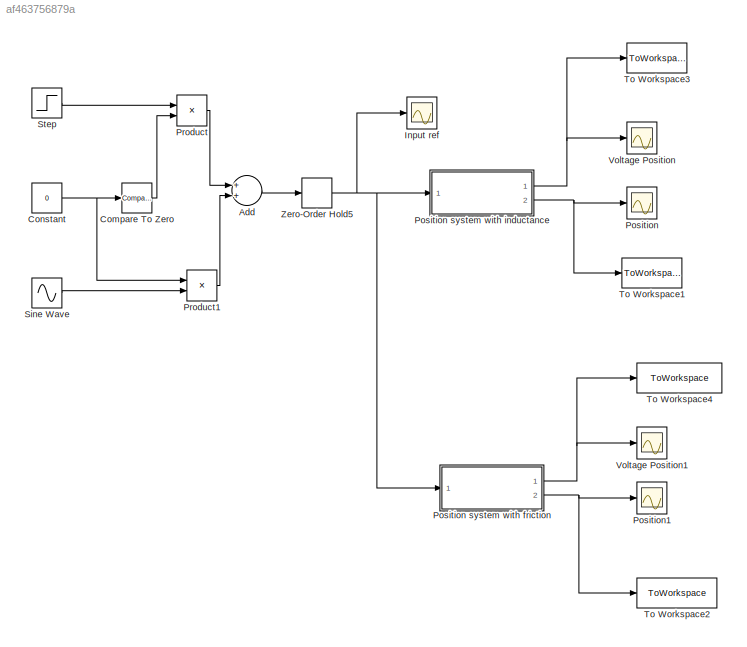
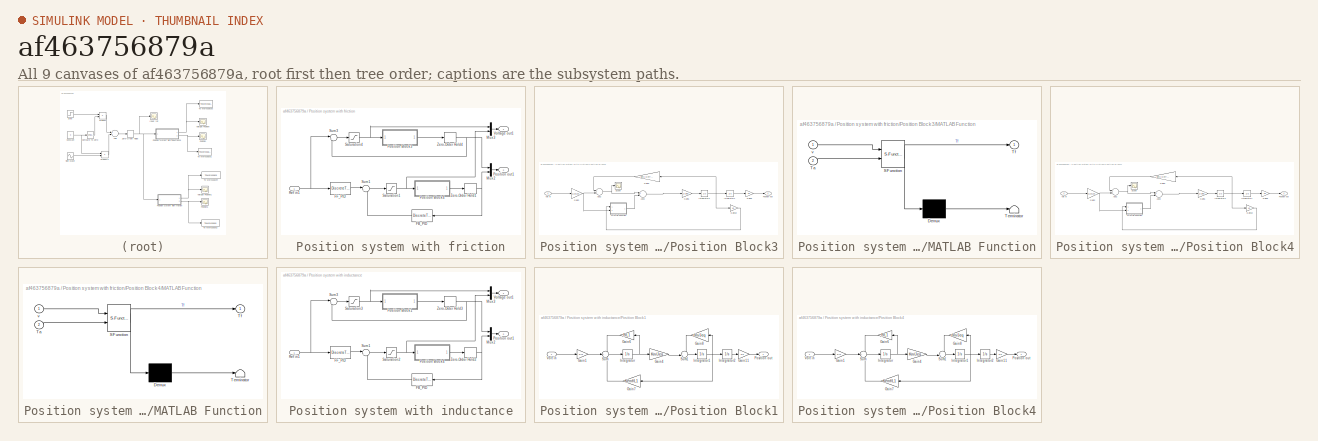
[diagram: thumbnail index - all 9 canvases of the model, root first then tree order]
MODEL slx_af463756879a
KIND model
CONFIG AbsTol = auto
CONFIG FixedStep = auto
CONFIG MaxStep = auto
CONFIG MinStep = auto
CONFIG RelTol = 1e-3
CONFIG SampleTimeConstraint = Unconstrained
CONFIG Solver = ode45
CONFIG SolverMode = SingleTasking
CONFIG SolverName = ode45
CONFIG StartTime = 0.0
CONFIG StopTime = time
BLOCK [Sum] Add
  InputSameDT = off
  OutDataTypeStr = Inherit: Inherit via internal rule
  Ports = [2, 1]
  SaturateOnIntegerOverflow = off
BLOCK [Reference] Compare To Zero  REF=simulink/Logic and Bit
Operations/Compare
To Zero
  OutDataTypeStr = boolean
  Ports = [1, 1]
  SourceBlock = simulink/Logic and Bit\nOperations/Compare\nTo Zero
  SourceType = Compare To Zero
  ZeroCross = on
  relop = <=
BLOCK [Constant] Constant
  Value = 0
BLOCK [Scope] Input ref
  Floating = off
  NumInputPorts = 1
  Ports = [1]
  ShowLegends = off
BLOCK [Scope] Position
  DataFormat = StructureWithTime
  Floating = off
  LimitDataPoints = off
  NumInputPorts = 1
  Ports = [1]
  ShowLegends = off
  YMax = 831.67539
  YMin = -1059.89325
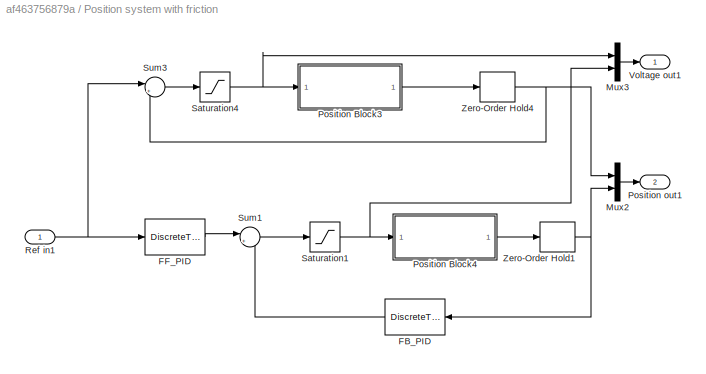
BLOCK [SubSystem] Position system with friction
  Ports = [1, 2]
  RequestExecContextInheritance = off
BLOCK [DiscreteTransferFcn] Position system with friction/FB_PID
  Denominator = FB_den{1,1}
  InputPortMap = u0
  Numerator = FB_num{1,1}
  Ports = [1, 1]
BLOCK [DiscreteTransferFcn] Position system with friction/FF_PID
  Denominator = FF_den{1,1}
  InputPortMap = u0
  Numerator = FF_num{1,1}
  Ports = [1, 1]
BLOCK [Mux] Position system with friction/Mux2
  DisplayOption = bar
  Inputs = 2
  Ports = [2, 1]
BLOCK [Mux] Position system with friction/Mux3
  DisplayOption = bar
  Inputs = 2
  Ports = [2, 1]
BLOCK [SubSystem] Position system with friction/Position Block3
  Ports = [1, 1]
  RequestExecContextInheritance = off
BLOCK [Sum] Position system with friction/Position Block3/Add2
  InputSameDT = off
  Inputs = -+
  OutDataTypeStr = Inherit: Inherit via internal rule
  Ports = [2, 1]
  SaturateOnIntegerOverflow = off
BLOCK [Sum] Position system with friction/Position Block3/Add3
  InputSameDT = off
  Inputs = +-
  OutDataTypeStr = Inherit: Inherit via internal rule
  Ports = [2, 1]
  SaturateOnIntegerOverflow = off
BLOCK [Gain] Position system with friction/Position Block3/Gain10
  Gain = 1/n
  OutDataTypeStr = Inherit: Inherit via internal rule
  ParamDataTypeStr = Inherit: Inherit via internal rule
  SaturateOnIntegerOverflow = off
BLOCK [Gain] Position system with friction/Position Block3/Gain2
  Gain = Km/R
  OutDataTypeStr = Inherit: Inherit via internal rule
  ParamDataTypeStr = Inherit: Inherit via internal rule
  SaturateOnIntegerOverflow = off
BLOCK [Gain] Position system with friction/Position Block3/Gain3
  Gain = dm+ Km*Kemf/R
  OutDataTypeStr = Inherit: Inherit via internal rule
  ParamDataTypeStr = Inherit: Inherit via internal rule
  SaturateOnIntegerOverflow = off
BLOCK [Gain] Position system with friction/Position Block3/Gain5
  Gain = 1/Jeq
  OutDataTypeStr = Inherit: Inherit via internal rule
  ParamDataTypeStr = Inherit: Inherit via internal rule
  SaturateOnIntegerOverflow = off
BLOCK [Gain] Position system with friction/Position Block3/Gain9
  Gain = 1/n
  OutDataTypeStr = Inherit: Inherit via internal rule
  ParamDataTypeStr = Inherit: Inherit via internal rule
  SaturateOnIntegerOverflow = off
BLOCK [Integrator] Position system with friction/Position Block3/Integrator1
  Ports = [1, 1]
BLOCK [Integrator] Position system with friction/Position Block3/Integrator3
  Ports = [1, 1]
BLOCK [SubSystem] Position system with friction/Position Block3/MATLAB Function
  ErrorFcn = Stateflow.Translate.translate
  PermitHierarchicalResolution = ExplicitOnly
  Ports = [2, 1]
  RequestExecContextInheritance = off
  SFBlockType = MATLAB Function
  TreatAsAtomicUnit = on
BLOCK [Demux] Position system with friction/Position Block3/MATLAB Function/ Demux 
  Outputs = 1
  Ports = [1, 1]
BLOCK [S-Function] Position system with friction/Position Block3/MATLAB Function/ SFunction 
  EnableBusSupport = on
  FunctionName = sf_sfun
  PortCounts = [2 2]
  Ports = [2, 2]
  Tag = Stateflow S-Function SimLab3_4 2
BLOCK [Terminator] Position system with friction/Position Block3/MATLAB Function/ Terminator 
BLOCK [Inport] Position system with friction/Position Block3/MATLAB Function/Ta
  IconDisplay = Port number
  Port = 2
BLOCK [Outport] Position system with friction/Position Block3/MATLAB Function/Tf
  IconDisplay = Port number
BLOCK [Inport] Position system with friction/Position Block3/MATLAB Function/v
  IconDisplay = Port number
BLOCK [Outport] Position system with friction/Position Block3/Position out
  IconDisplay = Port number
BLOCK [Scope] Position system with friction/Position Block3/Scope
  Floating = off
  NumInputPorts = 1
  Ports = [1]
  ShowLegends = off
BLOCK [Inport] Position system with friction/Position Block3/Volt in
  IconDisplay = Port number
BLOCK [SubSystem] Position system with friction/Position Block4
  Ports = [1, 1]
  RequestExecContextInheritance = off
BLOCK [Sum] Position system with friction/Position Block4/Add2
  InputSameDT = off
  Inputs = -+
  OutDataTypeStr = Inherit: Inherit via internal rule
  Ports = [2, 1]
  SaturateOnIntegerOverflow = off
BLOCK [Sum] Position system with friction/Position Block4/Add3
  InputSameDT = off
  Inputs = +-
  OutDataTypeStr = Inherit: Inherit via internal rule
  Ports = [2, 1]
  SaturateOnIntegerOverflow = off
BLOCK [Gain] Position system with friction/Position Block4/Gain10
  Gain = 1/n
  OutDataTypeStr = Inherit: Inherit via internal rule
  ParamDataTypeStr = Inherit: Inherit via internal rule
  SaturateOnIntegerOverflow = off
BLOCK [Gain] Position system with friction/Position Block4/Gain2
  Gain = Km/R
  OutDataTypeStr = Inherit: Inherit via internal rule
  ParamDataTypeStr = Inherit: Inherit via internal rule
  SaturateOnIntegerOverflow = off
BLOCK [Gain] Position system with friction/Position Block4/Gain3
  Gain = dm+ Km*Kemf/R
  OutDataTypeStr = Inherit: Inherit via internal rule
  ParamDataTypeStr = Inherit: Inherit via internal rule
  SaturateOnIntegerOverflow = off
BLOCK [Gain] Position system with friction/Position Block4/Gain5
  Gain = 1/Jeq
  OutDataTypeStr = Inherit: Inherit via internal rule
  ParamDataTypeStr = Inherit: Inherit via internal rule
  SaturateOnIntegerOverflow = off
BLOCK [Gain] Position system with friction/Position Block4/Gain9
  Gain = 1/n
  OutDataTypeStr = Inherit: Inherit via internal rule
  ParamDataTypeStr = Inherit: Inherit via internal rule
  SaturateOnIntegerOverflow = off
BLOCK [Integrator] Position system with friction/Position Block4/Integrator1
  Ports = [1, 1]
BLOCK [Integrator] Position system with friction/Position Block4/Integrator3
  Ports = [1, 1]
BLOCK [SubSystem] Position system with friction/Position Block4/MATLAB Function
  ErrorFcn = Stateflow.Translate.translate
  PermitHierarchicalResolution = ExplicitOnly
  Ports = [2, 1]
  RequestExecContextInheritance = off
  SFBlockType = MATLAB Function
  TreatAsAtomicUnit = on
BLOCK [Demux] Position system with friction/Position Block4/MATLAB Function/ Demux 
  Outputs = 1
  Ports = [1, 1]
BLOCK [S-Function] Position system with friction/Position Block4/MATLAB Function/ SFunction 
  EnableBusSupport = on
  FunctionName = sf_sfun
  PortCounts = [2 2]
  Ports = [2, 2]
  Tag = Stateflow S-Function SimLab3_4 3
BLOCK [Terminator] Position system with friction/Position Block4/MATLAB Function/ Terminator 
BLOCK [Inport] Position system with friction/Position Block4/MATLAB Function/Ta
  IconDisplay = Port number
  Port = 2
BLOCK [Outport] Position system with friction/Position Block4/MATLAB Function/Tf
  IconDisplay = Port number
BLOCK [Inport] Position system with friction/Position Block4/MATLAB Function/v
  IconDisplay = Port number
BLOCK [Outport] Position system with friction/Position Block4/Position out
  IconDisplay = Port number
BLOCK [Scope] Position system with friction/Position Block4/Scope
  Floating = off
  NumInputPorts = 1
  Ports = [1]
  ShowLegends = off
BLOCK [Inport] Position system with friction/Position Block4/Volt in
  IconDisplay = Port number
BLOCK [Outport] Position system with friction/Position out1
  IconDisplay = Port number
  Port = 2
BLOCK [Inport] Position system with friction/Ref in1
  IconDisplay = Port number
BLOCK [Saturate] Position system with friction/Saturation1
  InputPortMap = u0
  LowerLimit = -24
  Ports = [1, 1]
  UpperLimit = 24
BLOCK [Saturate] Position system with friction/Saturation4
  InputPortMap = u0
  LowerLimit = -24
  Ports = [1, 1]
  UpperLimit = 24
BLOCK [Sum] Position system with friction/Sum1
  IconShape = round
  InputSameDT = off
  Inputs = |+-
  OutDataTypeStr = Inherit: Inherit via internal rule
  Ports = [2, 1]
  SaturateOnIntegerOverflow = off
BLOCK [Sum] Position system with friction/Sum3
  IconShape = round
  InputSameDT = off
  Inputs = |+-
  OutDataTypeStr = Inherit: Inherit via internal rule
  Ports = [2, 1]
  SaturateOnIntegerOverflow = off
BLOCK [Outport] Position system with friction/Voltage out1
  IconDisplay = Port number
BLOCK [ZeroOrderHold] Position system with friction/Zero-Order Hold1
  SampleTime = Ts
BLOCK [ZeroOrderHold] Position system with friction/Zero-Order Hold4
  SampleTime = Ts
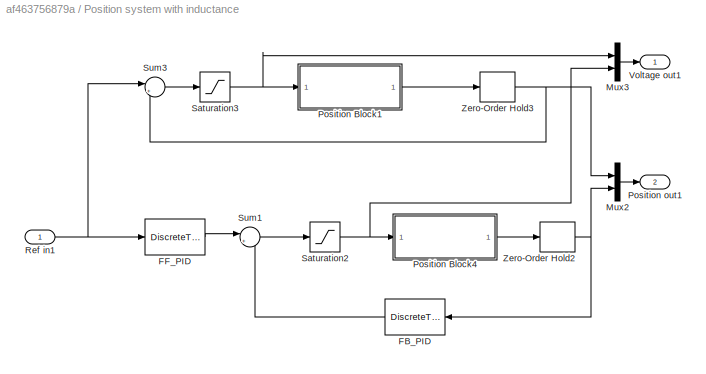
BLOCK [SubSystem] Position system with inductance
  Ports = [1, 2]
  RequestExecContextInheritance = off
BLOCK [DiscreteTransferFcn] Position system with inductance/FB_PID
  Denominator = FB_den{1,1}
  InputPortMap = u0
  Numerator = FB_num{1,1}
  Ports = [1, 1]
BLOCK [DiscreteTransferFcn] Position system with inductance/FF_PID
  Denominator = FF_den{1,1}
  InputPortMap = u0
  Numerator = FF_num{1,1}
  Ports = [1, 1]
BLOCK [Mux] Position system with inductance/Mux2
  DisplayOption = bar
  Inputs = 2
  Ports = [2, 1]
BLOCK [Mux] Position system with inductance/Mux3
  DisplayOption = bar
  Inputs = 2
  Ports = [2, 1]
BLOCK [SubSystem] Position system with inductance/Position Block1
  Ports = [1, 1]
  RequestExecContextInheritance = off
BLOCK [Gain] Position system with inductance/Position Block1/Gain1
  Gain = 1/L1
  OutDataTypeStr = Inherit: Inherit via internal rule
  ParamDataTypeStr = Inherit: Inherit via internal rule
  SaturateOnIntegerOverflow = off
BLOCK [Gain] Position system with inductance/Position Block1/Gain11
  Gain = 1/n
  OutDataTypeStr = Inherit: Inherit via internal rule
  ParamDataTypeStr = Inherit: Inherit via internal rule
  SaturateOnIntegerOverflow = off
BLOCK [Gain] Position system with inductance/Position Block1/Gain4
  Gain = Km/Jeq
  OutDataTypeStr = Inherit: Inherit via internal rule
  ParamDataTypeStr = Inherit: Inherit via internal rule
  SaturateOnIntegerOverflow = off
BLOCK [Gain] Position system with inductance/Position Block1/Gain6
  Gain = R/L1
  OutDataTypeStr = Inherit: Inherit via internal rule
  ParamDataTypeStr = Inherit: Inherit via internal rule
  SaturateOnIntegerOverflow = off
BLOCK [Gain] Position system with inductance/Position Block1/Gain7
  Gain = Kemf/L1
  OutDataTypeStr = Inherit: Inherit via internal rule
  ParamDataTypeStr = Inherit: Inherit via internal rule
  SaturateOnIntegerOverflow = off
BLOCK [Gain] Position system with inductance/Position Block1/Gain8
  Gain = dm/Jeq
  OutDataTypeStr = Inherit: Inherit via internal rule
  ParamDataTypeStr = Inherit: Inherit via internal rule
  SaturateOnIntegerOverflow = off
BLOCK [Integrator] Position system with inductance/Position Block1/Integrator
  Ports = [1, 1]
BLOCK [Integrator] Position system with inductance/Position Block1/Integrator1
  Ports = [1, 1]
BLOCK [Integrator] Position system with inductance/Position Block1/Integrator2
  Ports = [1, 1]
BLOCK [Outport] Position system with inductance/Position Block1/Position out
  IconDisplay = Port number
BLOCK [Sum] Position system with inductance/Position Block1/Sum
  IconShape = round
  InputSameDT = off
  Inputs = -+-
  OutDataTypeStr = Inherit: Inherit via internal rule
  Ports = [3, 1]
  SaturateOnIntegerOverflow = off
BLOCK [Sum] Position system with inductance/Position Block1/Sum1
  IconShape = round
  InputSameDT = off
  Inputs = -+|
  OutDataTypeStr = Inherit: Inherit via internal rule
  Ports = [2, 1]
  SaturateOnIntegerOverflow = off
BLOCK [Inport] Position system with inductance/Position Block1/Volt in
  IconDisplay = Port number
BLOCK [SubSystem] Position system with inductance/Position Block4
  Ports = [1, 1]
  RequestExecContextInheritance = off
BLOCK [Gain] Position system with inductance/Position Block4/Gain1
  Gain = 1/L1
  OutDataTypeStr = Inherit: Inherit via internal rule
  ParamDataTypeStr = Inherit: Inherit via internal rule
  SaturateOnIntegerOverflow = off
BLOCK [Gain] Position system with inductance/Position Block4/Gain11
  Gain = 1/n
  OutDataTypeStr = Inherit: Inherit via internal rule
  ParamDataTypeStr = Inherit: Inherit via internal rule
  SaturateOnIntegerOverflow = off
BLOCK [Gain] Position system with inductance/Position Block4/Gain4
  Gain = Km/Jeq
  OutDataTypeStr = Inherit: Inherit via internal rule
  ParamDataTypeStr = Inherit: Inherit via internal rule
  SaturateOnIntegerOverflow = off
BLOCK [Gain] Position system with inductance/Position Block4/Gain6
  Gain = R/L1
  OutDataTypeStr = Inherit: Inherit via internal rule
  ParamDataTypeStr = Inherit: Inherit via internal rule
  SaturateOnIntegerOverflow = off
BLOCK [Gain] Position system with inductance/Position Block4/Gain7
  Gain = Kemf/L1
  OutDataTypeStr = Inherit: Inherit via internal rule
  ParamDataTypeStr = Inherit: Inherit via internal rule
  SaturateOnIntegerOverflow = off
BLOCK [Gain] Position system with inductance/Position Block4/Gain8
  Gain = dm/Jeq
  OutDataTypeStr = Inherit: Inherit via internal rule
  ParamDataTypeStr = Inherit: Inherit via internal rule
  SaturateOnIntegerOverflow = off
BLOCK [Integrator] Position system with inductance/Position Block4/Integrator
  Ports = [1, 1]
BLOCK [Integrator] Position system with inductance/Position Block4/Integrator1
  Ports = [1, 1]
BLOCK [Integrator] Position system with inductance/Position Block4/Integrator2
  Ports = [1, 1]
BLOCK [Outport] Position system with inductance/Position Block4/Position out
  IconDisplay = Port number
BLOCK [Sum] Position system with inductance/Position Block4/Sum
  IconShape = round
  InputSameDT = off
  Inputs = -+-
  OutDataTypeStr = Inherit: Inherit via internal rule
  Ports = [3, 1]
  SaturateOnIntegerOverflow = off
BLOCK [Sum] Position system with inductance/Position Block4/Sum1
  IconShape = round
  InputSameDT = off
  Inputs = -+|
  OutDataTypeStr = Inherit: Inherit via internal rule
  Ports = [2, 1]
  SaturateOnIntegerOverflow = off
BLOCK [Inport] Position system with inductance/Position Block4/Volt in
  IconDisplay = Port number
BLOCK [Outport] Position system with inductance/Position out1
  IconDisplay = Port number
  Port = 2
BLOCK [Inport] Position system with inductance/Ref in1
  IconDisplay = Port number
BLOCK [Saturate] Position system with inductance/Saturation2
  InputPortMap = u0
  LowerLimit = -24
  Ports = [1, 1]
  UpperLimit = 24
BLOCK [Saturate] Position system with inductance/Saturation3
  InputPortMap = u0
  LowerLimit = -24
  Ports = [1, 1]
  UpperLimit = 24
BLOCK [Sum] Position system with inductance/Sum1
  IconShape = round
  InputSameDT = off
  Inputs = |+-
  OutDataTypeStr = Inherit: Inherit via internal rule
  Ports = [2, 1]
  SaturateOnIntegerOverflow = off
BLOCK [Sum] Position system with inductance/Sum3
  IconShape = round
  InputSameDT = off
  Inputs = |+-
  OutDataTypeStr = Inherit: Inherit via internal rule
  Ports = [2, 1]
  SaturateOnIntegerOverflow = off
BLOCK [Outport] Position system with inductance/Voltage out1
  IconDisplay = Port number
BLOCK [ZeroOrderHold] Position system with inductance/Zero-Order Hold2
  SampleTime = Ts
BLOCK [ZeroOrderHold] Position system with inductance/Zero-Order Hold3
  SampleTime = Ts
BLOCK [Scope] Position1
  DataFormat = StructureWithTime
  Floating = off
  LimitDataPoints = off
  NumInputPorts = 1
  Ports = [1]
  SaveName = ScopeData1
  ShowLegends = off
  YMax = 34.33503
  YMin = -3.815
BLOCK [Product] Product
  InputSameDT = off
  OutDataTypeStr = Inherit: Inherit via internal rule
  Ports = [2, 1]
  RndMeth = Floor
  SaturateOnIntegerOverflow = off
BLOCK [Product] Product1
  InputSameDT = off
  OutDataTypeStr = Inherit: Inherit via internal rule
  Ports = [2, 1]
  RndMeth = Floor
  SaturateOnIntegerOverflow = off
BLOCK [Sin] Sine Wave
  Amplitude = Amplitude
  Frequency = Freq
  Ports = [0, 1]
  SampleTime = 0
BLOCK [Step] Step
  After = Amplitude
  SampleTime = 0
  Time = 0
BLOCK [ToWorkspace] To Workspace1
  FixptAsFi = on
  MaxDataPoints = inf
  Ports = [1]
  SampleTime = Ts
  Save2DSignal = 3-D array (concatenate along third dimension)
  SaveFormat = Structure With Time
  VariableName = PositionOutL
BLOCK [ToWorkspace] To Workspace2
  FixptAsFi = on
  MaxDataPoints = inf
  Ports = [1]
  SampleTime = Ts
  Save2DSignal = 3-D array (concatenate along third dimension)
  SaveFormat = Structure With Time
  VariableName = PositionOutFriction
BLOCK [ToWorkspace] To Workspace3
  FixptAsFi = on
  MaxDataPoints = inf
  Ports = [1]
  SampleTime = Ts
  Save2DSignal = 3-D array (concatenate along third dimension)
  SaveFormat = Structure With Time
  VariableName = VoltageOutL
BLOCK [ToWorkspace] To Workspace4
  FixptAsFi = on
  MaxDataPoints = inf
  Ports = [1]
  SampleTime = Ts
  Save2DSignal = 3-D array (concatenate along third dimension)
  SaveFormat = Structure With Time
  VariableName = VoltageOutFriction
BLOCK [Scope] Voltage Position
  Floating = off
  NumInputPorts = 1
  Ports = [1]
  ShowLegends = off
BLOCK [Scope] Voltage Position1
  Floating = off
  NumInputPorts = 1
  Ports = [1]
  SaveName = ScopeData2
  ShowLegends = off
  YMax = 30.00000
  YMin = -30.00000
BLOCK [ZeroOrderHold] Zero-Order Hold5
  SampleTime = Ts
LINE Add:1 -> Zero-Order Hold5:1
LINE Compare To Zero:1 -> Product:2
NET Constant:1 -> Compare To Zero:1, Product1:1
LINE Position system with friction/FB_PID:1 -> Position system with friction/Sum1:2
LINE Position system with friction/FF_PID:1 -> Position system with friction/Sum1:1
LINE Position system with friction/Mux2:1 -> Position system with friction/Position out1:1
LINE Position system with friction/Mux3:1 -> Position system with friction/Voltage out1:1
NET Position system with friction/Position Block3/Add2:1 -> Position system with friction/Position Block3/Add3:1, Position system with friction/Position Block3/Scope:1
LINE Position system with friction/Position Block3/Add3:1 -> Position system with friction/Position Block3/Gain5:1
LINE Position system with friction/Position Block3/Gain10:1 -> Position system with friction/Position Block3/MATLAB Function:1
NET Position system with friction/Position Block3/Gain2:1 -> Position system with friction/Position Block3/Add2:2, Position system with friction/Position Block3/MATLAB Function:2
LINE Position system with friction/Position Block3/Gain3:1 -> Position system with friction/Position Block3/Add2:1
LINE Position system with friction/Position Block3/Gain5:1 -> Position system with friction/Position Block3/Integrator3:1
LINE Position system with friction/Position Block3/Gain9:1 -> Position system with friction/Position Block3/Position out:1
LINE Position system with friction/Position Block3/Integrator1:1 -> Position system with friction/Position Block3/Gain9:1
NET Position system with friction/Position Block3/Integrator3:1 -> Position system with friction/Position Block3/Gain10:1, Position system with friction/Position Block3/Gain3:1, Position system with friction/Position Block3/Integrator1:1
LINE Position system with friction/Position Block3/MATLAB Function:1 -> Position system with friction/Position Block3/Add3:2
LINE Position system with friction/Position Block3/Volt in:1 -> Position system with friction/Position Block3/Gain2:1
LINE Position system with friction/Position Block3:1 -> Position system with friction/Zero-Order Hold4:1
NET Position system with friction/Position Block4/Add2:1 -> Position system with friction/Position Block4/Add3:1, Position system with friction/Position Block4/Scope:1
LINE Position system with friction/Position Block4/Add3:1 -> Position system with friction/Position Block4/Gain5:1
LINE Position system with friction/Position Block4/Gain10:1 -> Position system with friction/Position Block4/MATLAB Function:1
NET Position system with friction/Position Block4/Gain2:1 -> Position system with friction/Position Block4/Add2:2, Position system with friction/Position Block4/MATLAB Function:2
LINE Position system with friction/Position Block4/Gain3:1 -> Position system with friction/Position Block4/Add2:1
LINE Position system with friction/Position Block4/Gain5:1 -> Position system with friction/Position Block4/Integrator3:1
LINE Position system with friction/Position Block4/Gain9:1 -> Position system with friction/Position Block4/Position out:1
LINE Position system with friction/Position Block4/Integrator1:1 -> Position system with friction/Position Block4/Gain9:1
NET Position system with friction/Position Block4/Integrator3:1 -> Position system with friction/Position Block4/Gain10:1, Position system with friction/Position Block4/Gain3:1, Position system with friction/Position Block4/Integrator1:1
LINE Position system with friction/Position Block4/MATLAB Function:1 -> Position system with friction/Position Block4/Add3:2
LINE Position system with friction/Position Block4/Volt in:1 -> Position system with friction/Position Block4/Gain2:1
LINE Position system with friction/Position Block4:1 -> Position system with friction/Zero-Order Hold1:1
NET Position system with friction/Ref in1:1 -> Position system with friction/FF_PID:1, Position system with friction/Sum3:1
NET Position system with friction/Saturation1:1 -> Position system with friction/Mux3:2, Position system with friction/Position Block4:1
NET Position system with friction/Saturation4:1 -> Position system with friction/Mux3:1, Position system with friction/Position Block3:1
LINE Position system with friction/Sum1:1 -> Position system with friction/Saturation1:1
LINE Position system with friction/Sum3:1 -> Position system with friction/Saturation4:1
NET Position system with friction/Zero-Order Hold1:1 -> Position system with friction/FB_PID:1, Position system with friction/Mux2:2
NET Position system with friction/Zero-Order Hold4:1 -> Position system with friction/Mux2:1, Position system with friction/Sum3:2
NET Position system with friction:1 -> To Workspace4:1, Voltage Position1:1
NET Position system with friction:2 -> Position1:1, To Workspace2:1
LINE Position system with inductance/FB_PID:1 -> Position system with inductance/Sum1:2
LINE Position system with inductance/FF_PID:1 -> Position system with inductance/Sum1:1
LINE Position system with inductance/Mux2:1 -> Position system with inductance/Position out1:1
LINE Position system with inductance/Mux3:1 -> Position system with inductance/Voltage out1:1
LINE Position system with inductance/Position Block1/Gain11:1 -> Position system with inductance/Position Block1/Position out:1
LINE Position system with inductance/Position Block1/Gain1:1 -> Position system with inductance/Position Block1/Sum:2
LINE Position system with inductance/Position Block1/Gain4:1 -> Position system with inductance/Position Block1/Sum1:2
LINE Position system with inductance/Position Block1/Gain6:1 -> Position system with inductance/Position Block1/Sum:1
LINE Position system with inductance/Position Block1/Gain7:1 -> Position system with inductance/Position Block1/Sum:3
LINE Position system with inductance/Position Block1/Gain8:1 -> Position system with inductance/Position Block1/Sum1:1
NET Position system with inductance/Position Block1/Integrator1:1 -> Position system with inductance/Position Block1/Gain7:1, Position system with inductance/Position Block1/Gain8:1, Position system with inductance/Position Block1/Integrator2:1
LINE Position system with inductance/Position Block1/Integrator2:1 -> Position system with inductance/Position Block1/Gain11:1
NET Position system with inductance/Position Block1/Integrator:1 -> Position system with inductance/Position Block1/Gain4:1, Position system with inductance/Position Block1/Gain6:1
LINE Position system with inductance/Position Block1/Sum1:1 -> Position system with inductance/Position Block1/Integrator1:1
LINE Position system with inductance/Position Block1/Sum:1 -> Position system with inductance/Position Block1/Integrator:1
LINE Position system with inductance/Position Block1/Volt in:1 -> Position system with inductance/Position Block1/Gain1:1
LINE Position system with inductance/Position Block1:1 -> Position system with inductance/Zero-Order Hold3:1
LINE Position system with inductance/Position Block4/Gain11:1 -> Position system with inductance/Position Block4/Position out:1
LINE Position system with inductance/Position Block4/Gain1:1 -> Position system with inductance/Position Block4/Sum:2
LINE Position system with inductance/Position Block4/Gain4:1 -> Position system with inductance/Position Block4/Sum1:2
LINE Position system with inductance/Position Block4/Gain6:1 -> Position system with inductance/Position Block4/Sum:1
LINE Position system with inductance/Position Block4/Gain7:1 -> Position system with inductance/Position Block4/Sum:3
LINE Position system with inductance/Position Block4/Gain8:1 -> Position system with inductance/Position Block4/Sum1:1
NET Position system with inductance/Position Block4/Integrator1:1 -> Position system with inductance/Position Block4/Gain7:1, Position system with inductance/Position Block4/Gain8:1, Position system with inductance/Position Block4/Integrator2:1
LINE Position system with inductance/Position Block4/Integrator2:1 -> Position system with inductance/Position Block4/Gain11:1
NET Position system with inductance/Position Block4/Integrator:1 -> Position system with inductance/Position Block4/Gain4:1, Position system with inductance/Position Block4/Gain6:1
LINE Position system with inductance/Position Block4/Sum1:1 -> Position system with inductance/Position Block4/Integrator1:1
LINE Position system with inductance/Position Block4/Sum:1 -> Position system with inductance/Position Block4/Integrator:1
LINE Position system with inductance/Position Block4/Volt in:1 -> Position system with inductance/Position Block4/Gain1:1
LINE Position system with inductance/Position Block4:1 -> Position system with inductance/Zero-Order Hold2:1
NET Position system with inductance/Ref in1:1 -> Position system with inductance/FF_PID:1, Position system with inductance/Sum3:1
NET Position system with inductance/Saturation2:1 -> Position system with inductance/Mux3:2, Position system with inductance/Position Block4:1
NET Position system with inductance/Saturation3:1 -> Position system with inductance/Mux3:1, Position system with inductance/Position Block1:1
LINE Position system with inductance/Sum1:1 -> Position system with inductance/Saturation2:1
LINE Position system with inductance/Sum3:1 -> Position system with inductance/Saturation3:1
NET Position system with inductance/Zero-Order Hold2:1 -> Position system with inductance/FB_PID:1, Position system with inductance/Mux2:2
NET Position system with inductance/Zero-Order Hold3:1 -> Position system with inductance/Mux2:1, Position system with inductance/Sum3:2
NET Position system with inductance:1 -> To Workspace3:1, Voltage Position:1
NET Position system with inductance:2 -> Position:1, To Workspace1:1
LINE Product1:1 -> Add:2
LINE Product:1 -> Add:1
LINE Sine Wave:1 -> Product1:2
LINE Step:1 -> Product:1
NET Zero-Order Hold5:1 -> Input ref:1, Position system with friction:1, Position system with inductance:1
note: NET lines group one-source signal fan-out (src -> all destinations, sorted); 1:1 wires keep LINE
CHART Position system with friction/Position Block3/MATLAB Function states=1 transitions=1
  STATE_LABEL 'eML_blk_kernel()'
  STATE_LABEL 'SCRIPT:\nfunction Tf = fcn(v,Ta)\nTc = 1e-3;\ndv = 1e-1;\nif abs(v) < dv\n    if abs(Ta) > Tc\n        Tf = Tc*sign(Ta);\n    else\n        Tf = Ta;\n    end\nelse\n    Tf = Tc*sign(v);\nend'
CHART Position system with friction/Position Block4/MATLAB Function states=1 transitions=1
  STATE_LABEL 'eML_blk_kernel()'
  STATE_LABEL 'SCRIPT:\nfunction Tf = fcn(v,Ta)\nTc = 1e-3;\ndv = 1e-1;\nif abs(v) < dv\n    if abs(Ta) > Tc\n        Tf = Tc*sign(Ta);\n    else\n        Tf = Ta;\n    end\nelse\n    Tf = Tc*sign(v);\nend'
